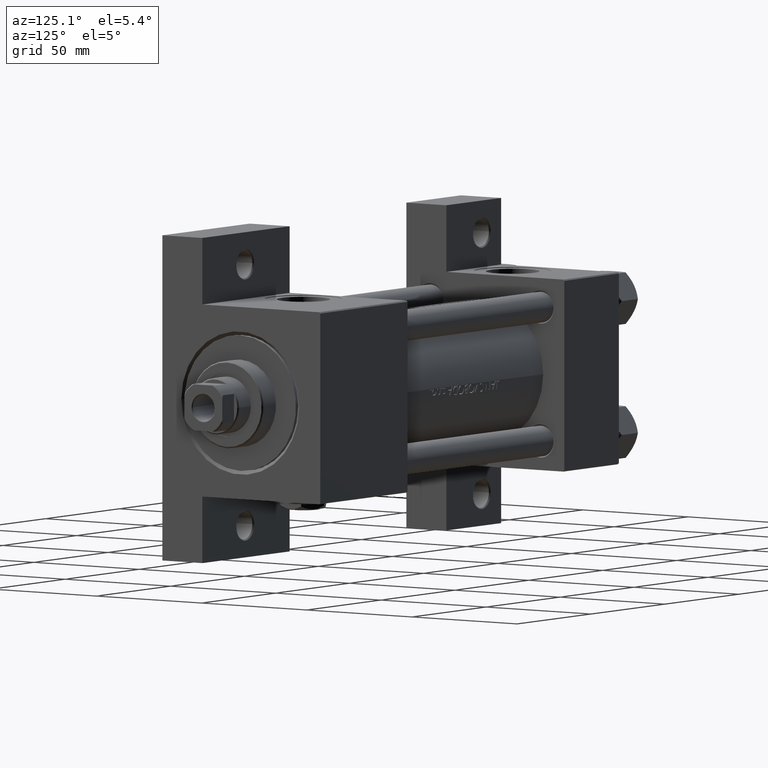
[diagram: clean part render]
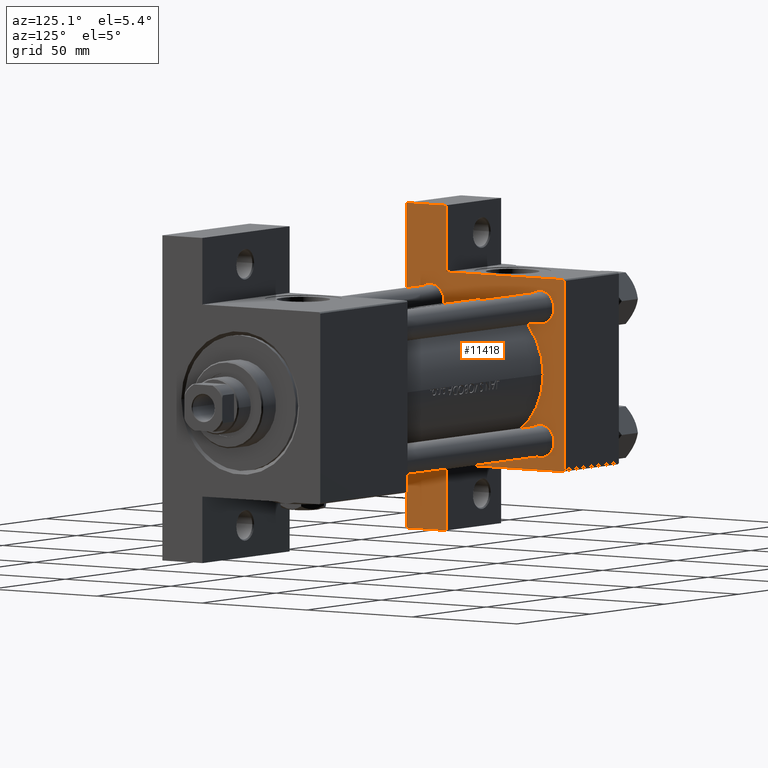
[diagram: same view with one face highlighted and labeled with its STEP entity id]
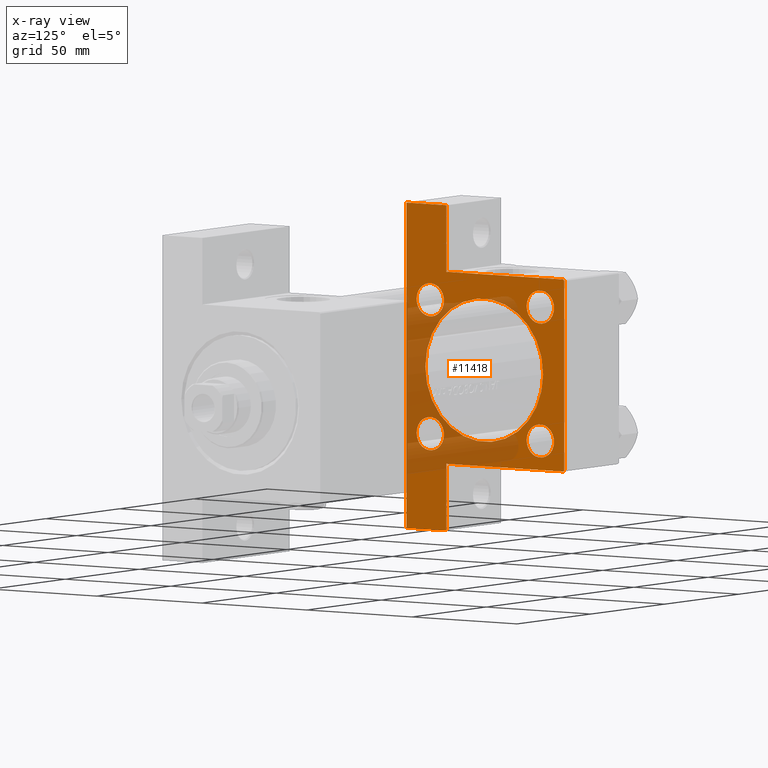
[diagram: x-ray of the same camera — body ghosted, the highlighted face saturated]
A machine part, auxiliary view. The second image highlights one B-rep face of the part: STEP entity #11418.
The next image is the same camera in x-ray: the body ghosted, the highlighted face saturated — about 32% of this face is hidden behind the body in this view.
In plain terms, the highlighted planar face has unit normal (-1, 0, -0).
Its self-contained STEP definition (entity closure, byte-faithful):
#45 = CARTESIAN_POINT ( 'NONE',  ( 37.00000000000000711, 37.50000000000000711, -18.50000000000000355 ) ) ;
#500 = CARTESIAN_POINT ( 'NONE',  ( 37.00000000000000000, 26.14999999999999858, -32.65000000000000568 ) ) ;
#551 = ORIENTED_EDGE ( 'NONE', *, *, #40289, .F. ) ;
#1098 = ORIENTED_EDGE ( 'NONE', *, *, #42511, .T. ) ;
#1263 = CARTESIAN_POINT ( 'NONE',  ( 37.00000000000000000, 26.14999999999999858, -26.15000000000000213 ) ) ;
#1532 = ORIENTED_EDGE ( 'NONE', *, *, #12807, .F. ) ;
#1908 = AXIS2_PLACEMENT_3D ( 'NONE', #7444, #2715, #17920 ) ;
#1973 = VECTOR ( 'NONE', #10923, 1000.000000000000114 ) ;
#2014 = DIRECTION ( 'NONE',  ( -1.000000000000000000, 0.000000000000000000, -0.000000000000000000 ) ) ;
#2020 = ORIENTED_EDGE ( 'NONE', *, *, #45313, .T. ) ;
#2058 = CARTESIAN_POINT ( 'NONE',  ( 37.00000000000000000, 26.14999999999999858, 19.64999999999999858 ) ) ;
#2137 = EDGE_CURVE ( 'NONE', #40023, #32452, #3186, .T. ) ;
#2640 = VECTOR ( 'NONE', #36950, 1000.000000000000000 ) ;
#2715 = DIRECTION ( 'NONE',  ( -1.000000000000000000, 0.000000000000000000, -0.000000000000000000 ) ) ;
#3028 = LINE ( 'NONE', #7258, #22585 ) ;
#3088 = CARTESIAN_POINT ( 'NONE',  ( 37.00000000000000000, -26.14999999999999147, -26.15000000000000924 ) ) ;
#3108 = FACE_OUTER_BOUND ( 'NONE', #12689, .T. ) ;
#3186 = CIRCLE ( 'NONE', #45335, 6.499999999999946709 ) ;
#3235 = ORIENTED_EDGE ( 'NONE', *, *, #38352, .T. ) ;
#3549 = CARTESIAN_POINT ( 'NONE',  ( 37.00000000000000000, 37.49999999999999289, -37.50000000000000000 ) ) ;
#3562 = ORIENTED_EDGE ( 'NONE', *, *, #49076, .F. ) ;
#4037 = ORIENTED_EDGE ( 'NONE', *, *, #27173, .F. ) ;
#4527 = VERTEX_POINT ( 'NONE', #500 ) ;
#4692 = CIRCLE ( 'NONE', #30944, 6.499999999999953815 ) ;
#4720 = DIRECTION ( 'NONE',  ( -1.000000000000000000, 0.000000000000000000, -0.000000000000000000 ) ) ;
#5012 = VERTEX_POINT ( 'NONE', #27247 ) ;
#5091 = VECTOR ( 'NONE', #28421, 1000.000000000000000 ) ;
#5416 = DIRECTION ( 'NONE',  ( -0.000000000000000000, -0.7071067811865474617, -0.7071067811865474617 ) ) ;
#5597 = EDGE_CURVE ( 'NONE', #33819, #23788, #25519, .T. ) ;
#6791 = CARTESIAN_POINT ( 'NONE',  ( 37.00000000000000000, -37.00000000000000711, 37.49999999999999289 ) ) ;
#6942 = EDGE_CURVE ( 'NONE', #32452, #40023, #12009, .T. ) ;
#6961 = ORIENTED_EDGE ( 'NONE', *, *, #15196, .T. ) ;
#7055 = CARTESIAN_POINT ( 'NONE',  ( 37.00000000000000000, -26.14999999999999147, 32.64999999999996305 ) ) ;
#7258 = CARTESIAN_POINT ( 'NONE',  ( 37.00000000000001421, 63.50000000000001421, -18.50000000000000355 ) ) ;
#7402 = CARTESIAN_POINT ( 'NONE',  ( 37.00000000000000000, 37.49999999999999289, 37.50000000000000000 ) ) ;
#7444 = CARTESIAN_POINT ( 'NONE',  ( 37.00000000000000000, -26.14999999999999147, 26.15000000000000924 ) ) ;
#7812 = CARTESIAN_POINT ( 'NONE',  ( 37.00000000000001421, 63.50000000000001421, 26.72167621838005047 ) ) ;
#7835 = DIRECTION ( 'NONE',  ( -0.000000000000000000, 0.000000000000000000, 1.000000000000000000 ) ) ;
#8170 = VERTEX_POINT ( 'NONE', #43869 ) ;
#8380 = LINE ( 'NONE', #7402, #11348 ) ;
#8407 = CARTESIAN_POINT ( 'NONE',  ( 37.00000000000000000, 26.14999999999999858, 26.15000000000000213 ) ) ;
#8635 = DIRECTION ( 'NONE',  ( 1.000000000000000000, -0.000000000000000000, 0.000000000000000000 ) ) ;
#9491 = VERTEX_POINT ( 'NONE', #6791 ) ;
#9562 = CARTESIAN_POINT ( 'NONE',  ( 37.00000000000000000, -26.14999999999999147, -32.64999999999995595 ) ) ;
#10039 = CARTESIAN_POINT ( 'NONE',  ( 37.00000000000000000, 26.14999999999999858, -19.65000000000000213 ) ) ;
#10837 = CARTESIAN_POINT ( 'NONE',  ( 37.00000000000000000, 0.000000000000000000, 0.000000000000000000 ) ) ;
#10923 = DIRECTION ( 'NONE',  ( 0.000000000000000000, -0.7071067811865474617, 0.7071067811865474617 ) ) ;
#10950 = LINE ( 'NONE', #36611, #34233 ) ;
#11090 = FACE_BOUND ( 'NONE', #22500, .T. ) ;
#11186 = AXIS2_PLACEMENT_3D ( 'NONE', #8407, #46035, #16150 ) ;
#11348 = VECTOR ( 'NONE', #22628, 1000.000000000000000 ) ;
#11418 = ADVANCED_FACE ( 'NONE', ( #37230, #30268, #29769, #36986, #11090, #3108 ), #44723, .F. ) ;
#11513 = VECTOR ( 'NONE', #5416, 1000.000000000000114 ) ;
#11527 = LINE ( 'NONE', #3549, #32602 ) ;
#11691 = EDGE_CURVE ( 'NONE', #23788, #33819, #43190, .T. ) ;
#12009 = CIRCLE ( 'NONE', #39834, 6.499999999999946709 ) ;
#12689 = EDGE_LOOP ( 'NONE', ( #1098, #38860, #6961, #1532, #2020, #551, #31436, #22201, #3562, #16967 ) ) ;
#12807 = EDGE_CURVE ( 'NONE', #24850, #44832, #21792, .T. ) ;
#13130 = DIRECTION ( 'NONE',  ( 0.000000000000000000, 0.000000000000000000, 1.000000000000000000 ) ) ;
#13405 = EDGE_CURVE ( 'NONE', #26928, #32965, #19405, .T. ) ;
#14098 = EDGE_CURVE ( 'NONE', #44177, #43882, #3028, .T. ) ;
#14364 = VECTOR ( 'NONE', #30353, 1000.000000000000000 ) ;
#14421 = CARTESIAN_POINT ( 'NONE',  ( 37.00000000000000000, 36.99999999999999289, 37.50000000000000000 ) ) ;
#14566 = DIRECTION ( 'NONE',  ( -1.000000000000000000, 0.000000000000000000, -0.000000000000000000 ) ) ;
#14713 = CARTESIAN_POINT ( 'NONE',  ( 37.00000000000000000, -37.50000000000000711, 36.99999999999999289 ) ) ;
#14833 = VERTEX_POINT ( 'NONE', #15626 ) ;
#14936 = CARTESIAN_POINT ( 'NONE',  ( 37.00000000000000000, 26.14999999999999858, -26.15000000000000213 ) ) ;
#15196 = EDGE_CURVE ( 'NONE', #40502, #44832, #32148, .T. ) ;
#15324 = EDGE_LOOP ( 'NONE', ( #18465, #30272 ) ) ;
#15626 = CARTESIAN_POINT ( 'NONE',  ( 37.00000000000000000, -63.50000000000000000, -37.49999999999999289 ) ) ;
#16080 = EDGE_CURVE ( 'NONE', #9491, #40502, #27377, .T. ) ;
#16150 = DIRECTION ( 'NONE',  ( 0.000000000000000000, 0.000000000000000000, 1.000000000000000000 ) ) ;
#16967 = ORIENTED_EDGE ( 'NONE', *, *, #19003, .T. ) ;
#17290 = DIRECTION ( 'NONE',  ( -1.000000000000000000, 0.000000000000000000, -0.000000000000000000 ) ) ;
#17920 = DIRECTION ( 'NONE',  ( 0.000000000000000000, 0.000000000000000000, 1.000000000000000000 ) ) ;
#18006 = EDGE_LOOP ( 'NONE', ( #49148, #26226 ) ) ;
#18342 = AXIS2_PLACEMENT_3D ( 'NONE', #1263, #2014, #47833 ) ;
#18465 = ORIENTED_EDGE ( 'NONE', *, *, #2137, .T. ) ;
#19003 = EDGE_CURVE ( 'NONE', #25200, #31666, #26137, .T. ) ;
#19405 = CIRCLE ( 'NONE', #1908, 6.499999999999953815 ) ;
#19443 = CARTESIAN_POINT ( 'NONE',  ( 37.00000000000000000, -26.14999999999999147, -26.15000000000000924 ) ) ;
#19931 = DIRECTION ( 'NONE',  ( 0.000000000000000000, 0.000000000000000000, 1.000000000000000000 ) ) ;
#20560 = CARTESIAN_POINT ( 'NONE',  ( 37.00000000000000000, -26.14999999999999147, -19.65000000000006253 ) ) ;
#20786 = EDGE_LOOP ( 'NONE', ( #39436, #3235 ) ) ;
#21286 = DIRECTION ( 'NONE',  ( 0.000000000000000000, 0.000000000000000000, 1.000000000000000000 ) ) ;
#21792 = LINE ( 'NONE', #47688, #2640 ) ;
#22201 = ORIENTED_EDGE ( 'NONE', *, *, #14098, .F. ) ;
#22208 = CIRCLE ( 'NONE', #26982, 6.500000000000002665 ) ;
#22228 = CARTESIAN_POINT ( 'NONE',  ( 37.00000000000000000, -26.14999999999999147, 26.15000000000000924 ) ) ;
#22500 = EDGE_LOOP ( 'NONE', ( #26807, #4037 ) ) ;
#22585 = VECTOR ( 'NONE', #29927, 1000.000000000000000 ) ;
#22628 = DIRECTION ( 'NONE',  ( 0.000000000000000000, 0.000000000000000000, -1.000000000000000000 ) ) ;
#22797 = LINE ( 'NONE', #7812, #45161 ) ;
#23788 = VERTEX_POINT ( 'NONE', #35735 ) ;
#24850 = VERTEX_POINT ( 'NONE', #40901 ) ;
#25200 = VERTEX_POINT ( 'NONE', #30374 ) ;
#25356 = DIRECTION ( 'NONE',  ( 1.000000000000000000, -0.000000000000000000, 0.000000000000000000 ) ) ;
#25519 = CIRCLE ( 'NONE', #11186, 6.500000000000008882 ) ;
#25545 = VERTEX_POINT ( 'NONE', #10039 ) ;
#25754 = EDGE_LOOP ( 'NONE', ( #29964, #44645 ) ) ;
#26053 = DIRECTION ( 'NONE',  ( -1.000000000000000000, 0.000000000000000000, -0.000000000000000000 ) ) ;
#26137 = LINE ( 'NONE', #14421, #1973 ) ;
#26226 = ORIENTED_EDGE ( 'NONE', *, *, #11691, .T. ) ;
#26475 = CARTESIAN_POINT ( 'NONE',  ( 37.00000000000000000, -26.14999999999999147, 19.65000000000005542 ) ) ;
#26807 = ORIENTED_EDGE ( 'NONE', *, *, #37730, .F. ) ;
#26844 = CARTESIAN_POINT ( 'NONE',  ( 37.00000000000000000, 36.99999999999999289, 37.50000000000000000 ) ) ;
#26928 = VERTEX_POINT ( 'NONE', #26475 ) ;
#26982 = AXIS2_PLACEMENT_3D ( 'NONE', #14936, #41072, #33106 ) ;
#27112 = CIRCLE ( 'NONE', #18342, 6.500000000000002665 ) ;
#27173 = EDGE_CURVE ( 'NONE', #8170, #5012, #35586, .T. ) ;
#27247 = CARTESIAN_POINT ( 'NONE',  ( 37.00000000000000711, 0.000000000000000000, 27.50000000000000000 ) ) ;
#27377 = LINE ( 'NONE', #28348, #11513 ) ;
#28348 = CARTESIAN_POINT ( 'NONE',  ( 37.00000000000000000, -37.50000000000000711, 36.99999999999999289 ) ) ;
#28421 = DIRECTION ( 'NONE',  ( 0.000000000000000000, 9.251858538542971581E-17, -1.000000000000000000 ) ) ;
#29769 = FACE_BOUND ( 'NONE', #25754, .T. ) ;
#29927 = DIRECTION ( 'NONE',  ( 2.668805347656626678E-16, 1.000000000000000000, 0.000000000000000000 ) ) ;
#29964 = ORIENTED_EDGE ( 'NONE', *, *, #13405, .T. ) ;
#30011 = EDGE_CURVE ( 'NONE', #32965, #26928, #4692, .T. ) ;
#30268 = FACE_BOUND ( 'NONE', #20786, .T. ) ;
#30272 = ORIENTED_EDGE ( 'NONE', *, *, #6942, .T. ) ;
#30353 = DIRECTION ( 'NONE',  ( 0.000000000000000000, -1.000000000000000000, -9.251858538542971581E-17 ) ) ;
#30374 = CARTESIAN_POINT ( 'NONE',  ( 37.00000000000000000, 37.49999999999999289, 37.00000000000000000 ) ) ;
#30809 = CARTESIAN_POINT ( 'NONE',  ( 37.00000000000001421, 63.50000000000000000, -37.50000000000002132 ) ) ;
#30944 = AXIS2_PLACEMENT_3D ( 'NONE', #22228, #41122, #41627 ) ;
#31436 = ORIENTED_EDGE ( 'NONE', *, *, #34384, .F. ) ;
#31666 = VERTEX_POINT ( 'NONE', #26844 ) ;
#31800 = CARTESIAN_POINT ( 'NONE',  ( 37.00000000000000711, 0.000000000000000000, -0.5000000000000004441 ) ) ;
#31956 = CARTESIAN_POINT ( 'NONE',  ( 37.00000000000001421, 63.50000000000000000, -18.50000000000000355 ) ) ;
#32148 = LINE ( 'NONE', #48070, #5091 ) ;
#32452 = VERTEX_POINT ( 'NONE', #20560 ) ;
#32602 = VECTOR ( 'NONE', #34176, 1000.000000000000000 ) ;
#32875 = DIRECTION ( 'NONE',  ( 0.000000000000000000, -1.734723475976806848E-16, -1.000000000000000000 ) ) ;
#32965 = VERTEX_POINT ( 'NONE', #7055 ) ;
#33055 = DIRECTION ( 'NONE',  ( 0.000000000000000000, 0.000000000000000000, 1.000000000000000000 ) ) ;
#33106 = DIRECTION ( 'NONE',  ( 0.000000000000000000, 0.000000000000000000, 1.000000000000000000 ) ) ;
#33819 = VERTEX_POINT ( 'NONE', #2058 ) ;
#34176 = DIRECTION ( 'NONE',  ( 0.000000000000000000, -1.000000000000000000, -9.251858538542972814E-17 ) ) ;
#34233 = VECTOR ( 'NONE', #32875, 1000.000000000000000 ) ;
#34384 = EDGE_CURVE ( 'NONE', #43882, #49120, #22797, .T. ) ;
#34706 = DIRECTION ( 'NONE',  ( 0.000000000000000000, -1.734723475976806848E-16, -1.000000000000000000 ) ) ;
#35586 = CIRCLE ( 'NONE', #41165, 28.00000000000000000 ) ;
#35704 = CARTESIAN_POINT ( 'NONE',  ( 37.00000000000000000, 26.14999999999999858, 26.15000000000000213 ) ) ;
#35735 = CARTESIAN_POINT ( 'NONE',  ( 37.00000000000000000, 26.14999999999999858, 32.65000000000001279 ) ) ;
#36611 = CARTESIAN_POINT ( 'NONE',  ( 37.00000000000000000, -63.49999999999998579, 26.72167621838007889 ) ) ;
#36804 = AXIS2_PLACEMENT_3D ( 'NONE', #35704, #17290, #21286 ) ;
#36950 = DIRECTION ( 'NONE',  ( -0.000000000000000000, 1.000000000000000000, 0.000000000000000000 ) ) ;
#36986 = FACE_BOUND ( 'NONE', #18006, .T. ) ;
#37206 = DIRECTION ( 'NONE',  ( 0.000000000000000000, 0.000000000000000000, 1.000000000000000000 ) ) ;
#37230 = FACE_BOUND ( 'NONE', #15324, .T. ) ;
#37730 = EDGE_CURVE ( 'NONE', #5012, #8170, #42880, .T. ) ;
#38310 = LINE ( 'NONE', #39469, #14364 ) ;
#38352 = EDGE_CURVE ( 'NONE', #25545, #4527, #22208, .T. ) ;
#38860 = ORIENTED_EDGE ( 'NONE', *, *, #16080, .T. ) ;
#39436 = ORIENTED_EDGE ( 'NONE', *, *, #45134, .T. ) ;
#39469 = CARTESIAN_POINT ( 'NONE',  ( 37.00000000000000000, 37.49999999999999289, 37.50000000000000000 ) ) ;
#39834 = AXIS2_PLACEMENT_3D ( 'NONE', #3088, #14566, #37206 ) ;
#40023 = VERTEX_POINT ( 'NONE', #9562 ) ;
#40289 = EDGE_CURVE ( 'NONE', #49120, #14833, #11527, .T. ) ;
#40502 = VERTEX_POINT ( 'NONE', #14713 ) ;
#40901 = CARTESIAN_POINT ( 'NONE',  ( 37.00000000000000000, -63.50000000000000000, -18.50000000000000355 ) ) ;
#41072 = DIRECTION ( 'NONE',  ( -1.000000000000000000, 0.000000000000000000, -0.000000000000000000 ) ) ;
#41122 = DIRECTION ( 'NONE',  ( -1.000000000000000000, 0.000000000000000000, -0.000000000000000000 ) ) ;
#41165 = AXIS2_PLACEMENT_3D ( 'NONE', #44276, #25356, #33055 ) ;
#41627 = DIRECTION ( 'NONE',  ( 0.000000000000000000, 0.000000000000000000, 1.000000000000000000 ) ) ;
#42511 = EDGE_CURVE ( 'NONE', #31666, #9491, #38310, .T. ) ;
#42880 = CIRCLE ( 'NONE', #48417, 28.00000000000000000 ) ;
#43190 = CIRCLE ( 'NONE', #36804, 6.500000000000008882 ) ;
#43869 = CARTESIAN_POINT ( 'NONE',  ( 37.00000000000000711, 3.429011037612589276E-15, -28.50000000000000000 ) ) ;
#43882 = VERTEX_POINT ( 'NONE', #31956 ) ;
#44177 = VERTEX_POINT ( 'NONE', #45 ) ;
#44276 = CARTESIAN_POINT ( 'NONE',  ( 37.00000000000000711, 0.000000000000000000, -0.5000000000000004441 ) ) ;
#44645 = ORIENTED_EDGE ( 'NONE', *, *, #30011, .T. ) ;
#44723 = PLANE ( 'NONE',  #45573 ) ;
#44832 = VERTEX_POINT ( 'NONE', #47898 ) ;
#45134 = EDGE_CURVE ( 'NONE', #4527, #25545, #27112, .T. ) ;
#45161 = VECTOR ( 'NONE', #34706, 1000.000000000000000 ) ;
#45313 = EDGE_CURVE ( 'NONE', #24850, #14833, #10950, .T. ) ;
#45335 = AXIS2_PLACEMENT_3D ( 'NONE', #19443, #4720, #19931 ) ;
#45573 = AXIS2_PLACEMENT_3D ( 'NONE', #10837, #26053, #7835 ) ;
#46035 = DIRECTION ( 'NONE',  ( -1.000000000000000000, 0.000000000000000000, -0.000000000000000000 ) ) ;
#47688 = CARTESIAN_POINT ( 'NONE',  ( 37.00000000000000000, -63.49999999999998579, -18.50000000000000355 ) ) ;
#47833 = DIRECTION ( 'NONE',  ( 0.000000000000000000, 0.000000000000000000, 1.000000000000000000 ) ) ;
#47898 = CARTESIAN_POINT ( 'NONE',  ( 37.00000000000000000, -37.50000000000000000, -18.50000000000000355 ) ) ;
#48070 = CARTESIAN_POINT ( 'NONE',  ( 37.00000000000000000, -37.50000000000000711, 37.49999999999999289 ) ) ;
#48417 = AXIS2_PLACEMENT_3D ( 'NONE', #31800, #8635, #13130 ) ;
#49076 = EDGE_CURVE ( 'NONE', #25200, #44177, #8380, .T. ) ;
#49120 = VERTEX_POINT ( 'NONE', #30809 ) ;
#49148 = ORIENTED_EDGE ( 'NONE', *, *, #5597, .T. ) ;